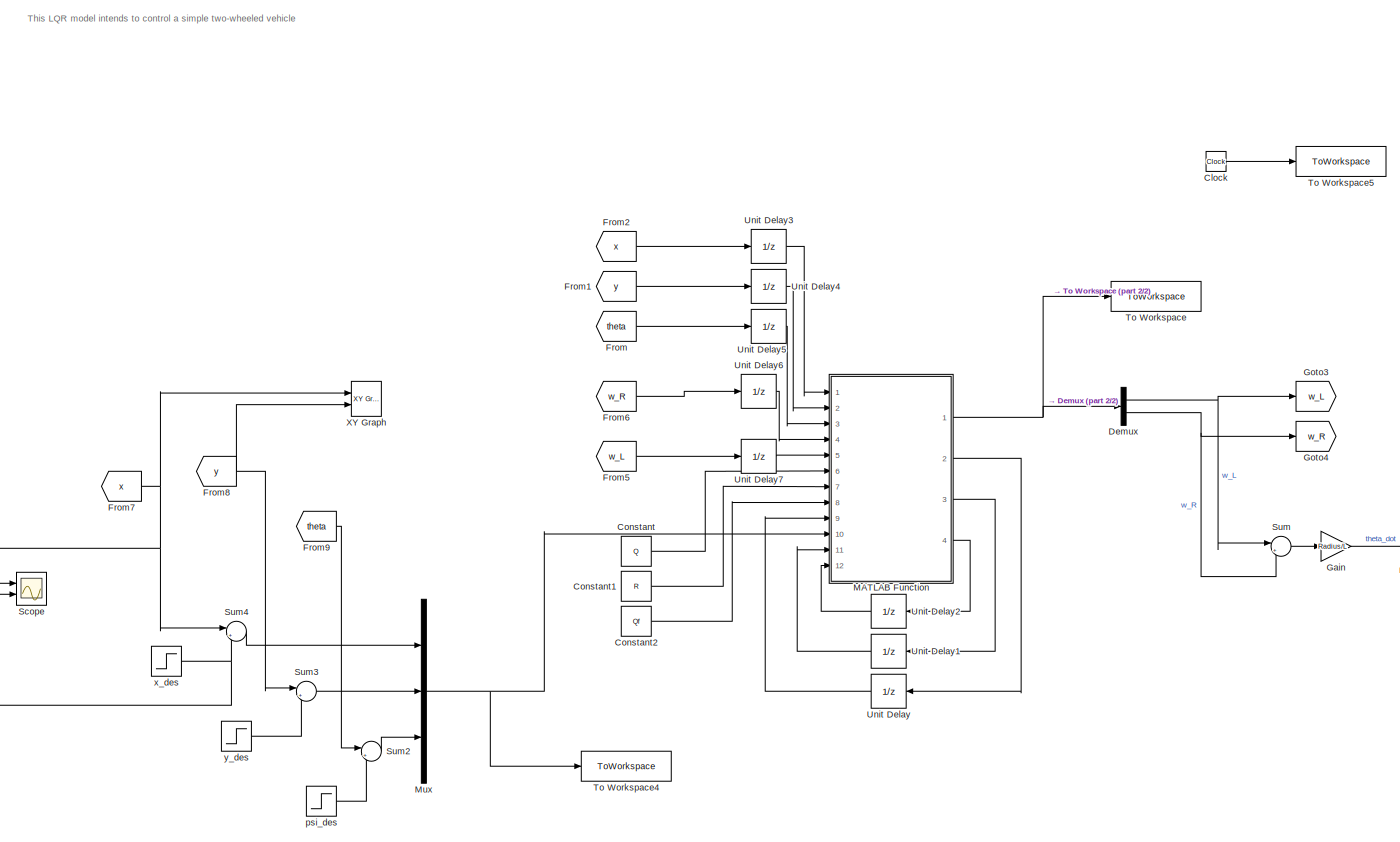
[diagram: root canvas - part 1/2, most of the canvas]
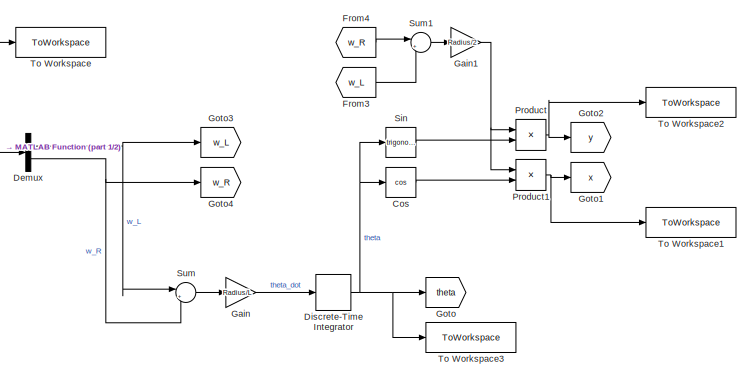
[diagram: root canvas - part 2/2, middle right region]
MODEL slx_eb8db9b099bb
KIND model
CONFIG AbsTol = auto
CONFIG EnableMultiTasking = off
CONFIG FixedStep = auto
CONFIG MaxStep = 0.01
CONFIG MinStep = auto
CONFIG RelTol = 1e-3
CONFIG SampleTimeConstraint = Unconstrained
CONFIG SolverName = VariableStepDiscrete
CONFIG StartTime = 0.0
CONFIG StopTime = 100
BLOCK [Clock] Clock
BLOCK [Constant] Constant
  Value = Q
BLOCK [Constant] Constant1
  Value = R
BLOCK [Constant] Constant2
  Value = Qf
BLOCK [Trigonometry] Cos
  Operator = cos
  Ports = [1, 1]
BLOCK [Demux] Demux
  Outputs = 2
  Ports = [1, 2]
BLOCK [DiscreteIntegrator] Discrete-Time Integrator
  ICPrevOutput = DiscIntNeverNeededParam
  ICPrevScaledInput = DiscIntNeverNeededParam
  InitialConditionSetting = Auto
  Ports = [1, 1]
  SampleTime = -1
BLOCK [From] From
  GotoTag = theta
BLOCK [From] From1
  GotoTag = y
BLOCK [From] From2
  GotoTag = x
BLOCK [From] From3
  GotoTag = w_L
BLOCK [From] From4
  GotoTag = w_R
BLOCK [From] From5
  GotoTag = w_L
BLOCK [From] From6
  GotoTag = w_R
BLOCK [From] From7
  GotoTag = x
BLOCK [From] From8
  GotoTag = y
BLOCK [From] From9
  GotoTag = theta
BLOCK [Gain] Gain
  Gain = Radius/L
BLOCK [Gain] Gain1
  Gain = Radius/2
BLOCK [Goto] Goto
  GotoTag = theta
BLOCK [Goto] Goto1
  GotoTag = x
BLOCK [Goto] Goto2
  GotoTag = y
BLOCK [Goto] Goto3
  GotoTag = w_L
BLOCK [Goto] Goto4
  GotoTag = w_R
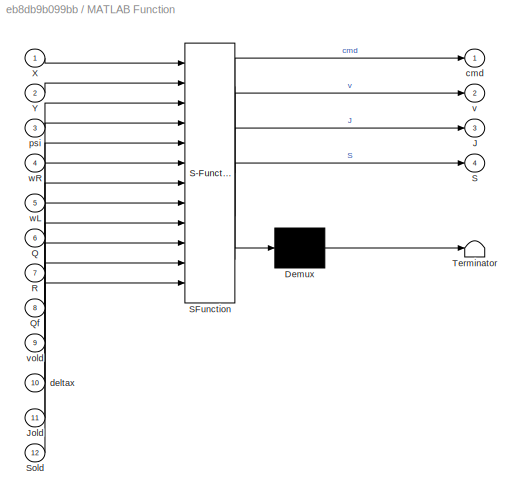
BLOCK [SubSystem] MATLAB Function
  ErrorFcn = Stateflow.Translate.translate
  PermitHierarchicalResolution = ExplicitOnly
  Ports = [12, 4]
  RequestExecContextInheritance = off
  SFBlockType = MATLAB Function
  TreatAsAtomicUnit = on
BLOCK [Demux] MATLAB Function/ Demux 
  Outputs = 1
  Ports = [1, 1]
BLOCK [S-Function] MATLAB Function/ SFunction 
  EnableBusSupport = on
  FunctionName = sf_sfun
  PortCounts = [12 5]
  Ports = [12, 5]
  SFcnIsStateOwnerBlock = off
  SFunctionDeploymentMode = off
  Tag = Stateflow S-Function 2
BLOCK [Terminator] MATLAB Function/ Terminator 
BLOCK [Outport] MATLAB Function/J
  Port = 3
BLOCK [Inport] MATLAB Function/Jold
  Port = 11
BLOCK [Inport] MATLAB Function/Q
  Port = 6
BLOCK [Inport] MATLAB Function/Qf
  Port = 8
BLOCK [Inport] MATLAB Function/R
  Port = 7
BLOCK [Outport] MATLAB Function/S
  Port = 4
BLOCK [Inport] MATLAB Function/Sold
  Port = 12
BLOCK [Inport] MATLAB Function/X
BLOCK [Inport] MATLAB Function/Y
  Port = 2
BLOCK [Outport] MATLAB Function/cmd
BLOCK [Inport] MATLAB Function/deltax
  Port = 10
BLOCK [Inport] MATLAB Function/psi
  Port = 3
BLOCK [Outport] MATLAB Function/v
  Port = 2
BLOCK [Inport] MATLAB Function/vold
  Port = 9
BLOCK [Inport] MATLAB Function/wL
  Port = 5
BLOCK [Inport] MATLAB Function/wR
  Port = 4
BLOCK [Mux] Mux
  DisplayOption = bar
  Inputs = 3
  Ports = [3, 1]
BLOCK [Product] Product
  Ports = [2, 1]
BLOCK [Product] Product1
  Ports = [2, 1]
BLOCK [Scope] Scope
  Floating = off
  NumInputPorts = 2
  Ports = [2]
  ScopeSpecificationString = Simulink.scopes.TimeScopeBlockCfg('CurrentConfiguration', extmgr.ConfigurationSet(extmgr.Configuration('Core','General UI',true),extmgr.Configuration('Core','Source UI',true),extmgr.Configuration('Sources','WiredSimulink',true),extmgr.Configuration('Visuals','Time Domain',true,'SerializedDisplays',{struct('MinYLimReal','-0.125','MaxYLimReal','1.125','YLabelReal','','MinYLimMag','0.00000','MaxYLimM...<+1422ch>
BLOCK [Trigonometry] Sin
  Ports = [1, 1]
BLOCK [Sum] Sum
  Inputs = |+-
  Ports = [2, 1]
BLOCK [Sum] Sum1
  Inputs = |++
  Ports = [2, 1]
BLOCK [Sum] Sum2
  Inputs = |+-
  Ports = [2, 1]
BLOCK [Sum] Sum3
  Inputs = |+-
  Ports = [2, 1]
BLOCK [Sum] Sum4
  Inputs = |+-
  Ports = [2, 1]
BLOCK [ToWorkspace] To Workspace
  FixptAsFi = on
  MaxDataPoints = inf
  Ports = [1]
  SampleTime = -1
  VariableName = w
BLOCK [ToWorkspace] To Workspace1
  FixptAsFi = on
  MaxDataPoints = inf
  Ports = [1]
  SampleTime = -1
  VariableName = x
BLOCK [ToWorkspace] To Workspace2
  FixptAsFi = on
  MaxDataPoints = inf
  Ports = [1]
  SampleTime = -1
  VariableName = y
BLOCK [ToWorkspace] To Workspace3
  FixptAsFi = on
  MaxDataPoints = inf
  Ports = [1]
  SampleTime = -1
  VariableName = theta
BLOCK [ToWorkspace] To Workspace4
  FixptAsFi = on
  MaxDataPoints = inf
  Ports = [1]
  SampleTime = -1
  VariableName = references
BLOCK [ToWorkspace] To Workspace5
  FixptAsFi = on
  MaxDataPoints = inf
  Ports = [1]
  SampleTime = -1
  VariableName = time
BLOCK [UnitDelay] Unit Delay
  HasFrameUpgradeWarning = on
  InitialCondition = zeros(3,1)
  SampleTime = -1
BLOCK [UnitDelay] Unit Delay1
  HasFrameUpgradeWarning = on
  InitialCondition = 1
  SampleTime = -1
BLOCK [UnitDelay] Unit Delay2
  HasFrameUpgradeWarning = on
  InitialCondition = Qf
  SampleTime = -1
BLOCK [UnitDelay] Unit Delay3
  HasFrameUpgradeWarning = on
  NameLocation = top
  SampleTime = -1
BLOCK [UnitDelay] Unit Delay4
  HasFrameUpgradeWarning = on
  NameLocation = top
  SampleTime = -1
BLOCK [UnitDelay] Unit Delay5
  HasFrameUpgradeWarning = on
  NameLocation = top
  SampleTime = -1
BLOCK [UnitDelay] Unit Delay6
  HasFrameUpgradeWarning = on
  NameLocation = top
  SampleTime = -1
BLOCK [UnitDelay] Unit Delay7
  HasFrameUpgradeWarning = on
  NameLocation = top
  SampleTime = -1
BLOCK [Reference] XY Graph  REF=simulink/Sinks/XY Graph
  Ports = [2]
  SourceBlock = simulink/Sinks/XY Graph
  SourceProductBaseCode = SL
  SourceType = XY scope.
BLOCK [Step] psi_des
  SampleTime = 0
BLOCK [Step] x_des
  SampleTime = 0
BLOCK [Step] y_des
  SampleTime = 0
ANNOTATION (root): This LQR model intends to control a simple two-wheeled vehicle
LINE Clock:1 -> To Workspace5:1
LINE Constant1:1 -> MATLAB Function:7
LINE Constant2:1 -> MATLAB Function:8
LINE Constant:1 -> MATLAB Function:6
LINE Cos:1 -> Product1:2
NET Demux:1 -> Goto3:1, Sum:1
NET Demux:2 -> Goto4:1, Sum:2
NET Discrete-Time Integrator:1 -> Cos:1, Goto:1, Sin:1, To Workspace3:1
LINE From1:1 -> Unit Delay4:1
LINE From2:1 -> Unit Delay3:1
LINE From3:1 -> Sum1:2
LINE From4:1 -> Sum1:1
LINE From5:1 -> Unit Delay7:1
LINE From6:1 -> Unit Delay6:1
NET From7:1 -> Scope:1, Sum4:1, XY Graph:1
NET From8:1 -> Sum3:1, XY Graph:2
LINE From9:1 -> Sum2:1
LINE From:1 -> Unit Delay5:1
NET Gain1:1 -> Product1:1, Product:1
LINE Gain:1 -> Discrete-Time Integrator:1
NET MATLAB Function:1 -> Demux:1, To Workspace:1
LINE MATLAB Function:2 -> Unit Delay:1
LINE MATLAB Function:3 -> Unit Delay1:1
LINE MATLAB Function:4 -> Unit Delay2:1
NET Mux:1 -> MATLAB Function:10, To Workspace4:1
NET Product1:1 -> Goto1:1, To Workspace1:1
NET Product:1 -> Goto2:1, To Workspace2:1
LINE Sin:1 -> Product:2
LINE Sum1:1 -> Gain1:1
LINE Sum2:1 -> Mux:3
LINE Sum3:1 -> Mux:2
LINE Sum4:1 -> Mux:1
LINE Sum:1 -> Gain:1
LINE Unit Delay1:1 -> MATLAB Function:11
LINE Unit Delay2:1 -> MATLAB Function:12
LINE Unit Delay3:1 -> MATLAB Function:1
LINE Unit Delay4:1 -> MATLAB Function:2
LINE Unit Delay5:1 -> MATLAB Function:3
LINE Unit Delay6:1 -> MATLAB Function:4
LINE Unit Delay7:1 -> MATLAB Function:5
LINE Unit Delay:1 -> MATLAB Function:9
LINE psi_des:1 -> Sum2:2
NET x_des:1 -> Scope:2, Sum4:2
LINE y_des:1 -> Sum3:2
note: NET lines group one-source signal fan-out (src -> all destinations, sorted); 1:1 wires keep LINE
CHART MATLAB Function states=1 transitions=1
  STATE_LABEL 'eML_blk_kernel()'
  STATE_LABEL "SCRIPT:\nfunction [cmd, v, J, S]= fcn(X, Y, psi, wR, wL, Q, R, Qf, vold, deltax, Jold, Sold)\n\nr = 0.02;\nB = 0.185;\ndt = 0.01;\n\ntoll = 3*10^-5;\n\nA = [1 0 dt*-sin(psi)*r/2*(wR+wL);...\n     0 1 dt*cos(psi)*r/2*(wR+wL);...\n     0 0 1];\nB = dt*[cos(psi)*r/2 cos(psi)*r/2;...\n     sin(psi)*r/2 sin(psi)*r/2;...\n     -r/B r/B];\n\nJ = [X Y psi]*Qf*[X Y psi]'+[X Y psi]*Q*[X Y psi]'+[wL wR]*R*[wL wR]';\n\ncmd = z...<+336ch>"
CHART  states=0 transitions=0
